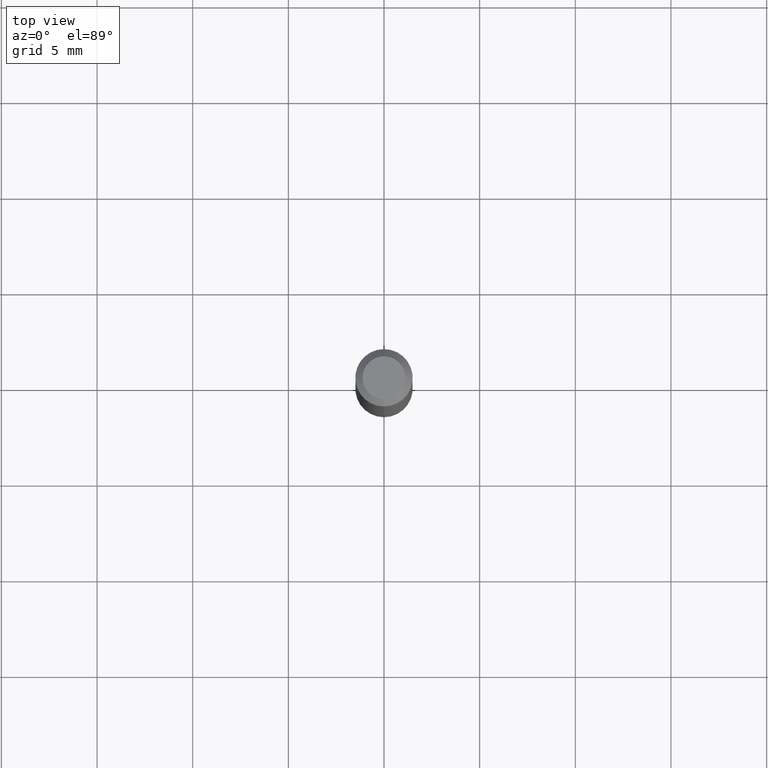
[diagram: clean part render]
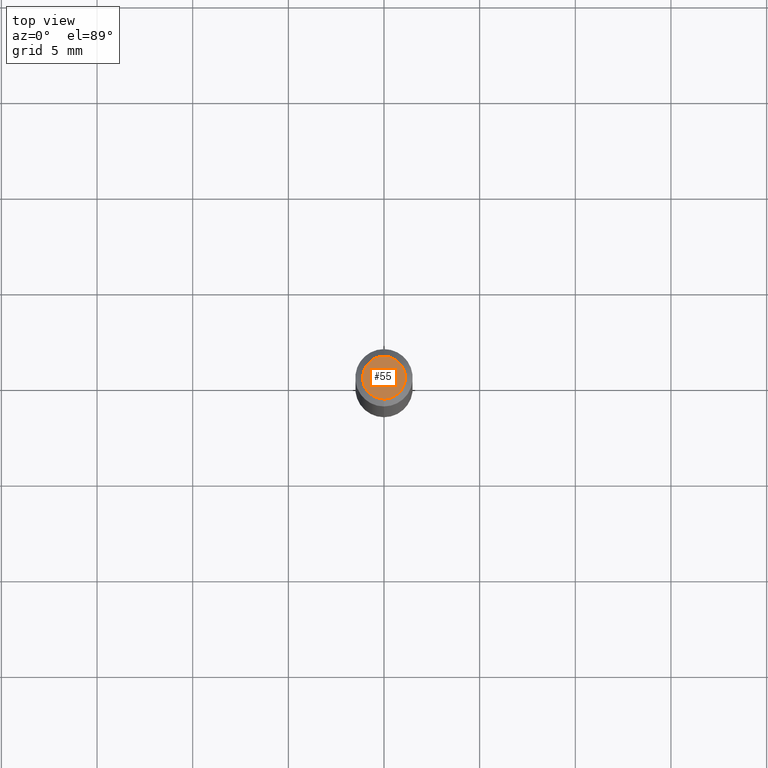
[diagram: same view with one face highlighted and labeled with its STEP entity id]
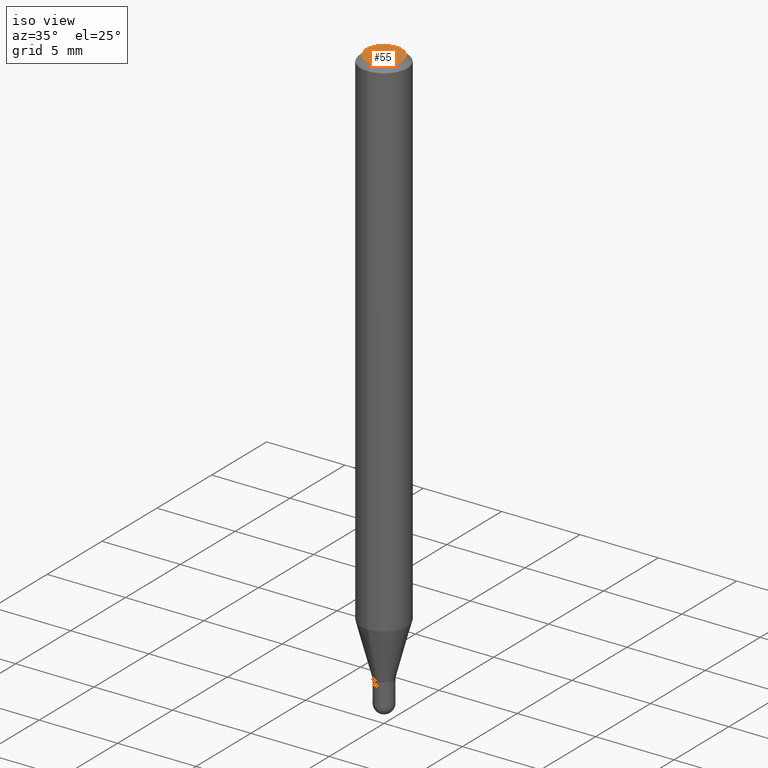
[diagram: same view with one face highlighted and labeled with its STEP entity id]
A machine part, top view. The second image highlights one B-rep face of the part: STEP entity #55.
A second angle (iso view) of the same face is appended — the face is thin or edge-on in the first view.
In plain terms, the highlighted planar face has unit normal (0, -0, -1).
Its self-contained STEP definition (entity closure, byte-faithful):
#37 = DIRECTION ( 'NONE',  ( -2.445525843005388911E-29, 3.491399658870209934E-15, 1.000000000000000000 ) ) ;
#42 = VERTEX_POINT ( 'NONE', #68 ) ;
#55 = ADVANCED_FACE ( 'NONE', ( #205 ), #133, .F. ) ;
#62 = AXIS2_PLACEMENT_3D ( 'NONE', #468, #270, #265 ) ;
#68 = CARTESIAN_POINT ( 'NONE',  ( -3.536586717851222218E-16, -0.04404999999999999888, 6.212774405424533259E-17 ) ) ;
#131 = ORIENTED_EDGE ( 'NONE', *, *, #493, .T. ) ;
#133 = PLANE ( 'NONE',  #375 ) ;
#150 = CIRCLE ( 'NONE', #376, 0.04404999999999999888 ) ;
#172 = CIRCLE ( 'NONE', #62, 0.04404999999999999888 ) ;
#205 = FACE_OUTER_BOUND ( 'NONE', #418, .T. ) ;
#249 = DIRECTION ( 'NONE',  ( 2.445525843005388631E-29, -3.491399658870209934E-15, -1.000000000000000000 ) ) ;
#255 = ORIENTED_EDGE ( 'NONE', *, *, #465, .T. ) ;
#265 = DIRECTION ( 'NONE',  ( -6.982962677686265133E-15, -1.000000000000000000, 3.491399658870209540E-15 ) ) ;
#270 = DIRECTION ( 'NONE',  ( -2.445525843005388911E-29, 3.491399658870209934E-15, 1.000000000000000000 ) ) ;
#321 = CARTESIAN_POINT ( 'NONE',  ( 3.075995059520799729E-16, 0.04404999999999999888, -1.996303604327264309E-16 ) ) ;
#344 = CARTESIAN_POINT ( 'NONE',  ( 2.241774678896210549E-45, -3.200510586117268391E-31, -9.166841091898740301E-17 ) ) ;
#349 = CARTESIAN_POINT ( 'NONE',  ( 3.599717260347271507E-16, 0.04404999999999999888, -2.454645658922201386E-16 ) ) ;
#371 = DIRECTION ( 'NONE',  ( 6.982962677686265922E-15, 1.000000000000000000, -3.491399658870209934E-15 ) ) ;
#375 = AXIS2_PLACEMENT_3D ( 'NONE', #321, #249, #371 ) ;
#376 = AXIS2_PLACEMENT_3D ( 'NONE', #344, #37, #509 ) ;
#418 = EDGE_LOOP ( 'NONE', ( #255, #131 ) ) ;
#460 = VERTEX_POINT ( 'NONE', #349 ) ;
#465 = EDGE_CURVE ( 'NONE', #460, #42, #150, .T. ) ;
#468 = CARTESIAN_POINT ( 'NONE',  ( 2.241774678896210549E-45, -3.200510586117268391E-31, -9.166841091898740301E-17 ) ) ;
#493 = EDGE_CURVE ( 'NONE', #42, #460, #172, .T. ) ;
#509 = DIRECTION ( 'NONE',  ( -6.982962677686265133E-15, -1.000000000000000000, 3.491399658870209540E-15 ) ) ;